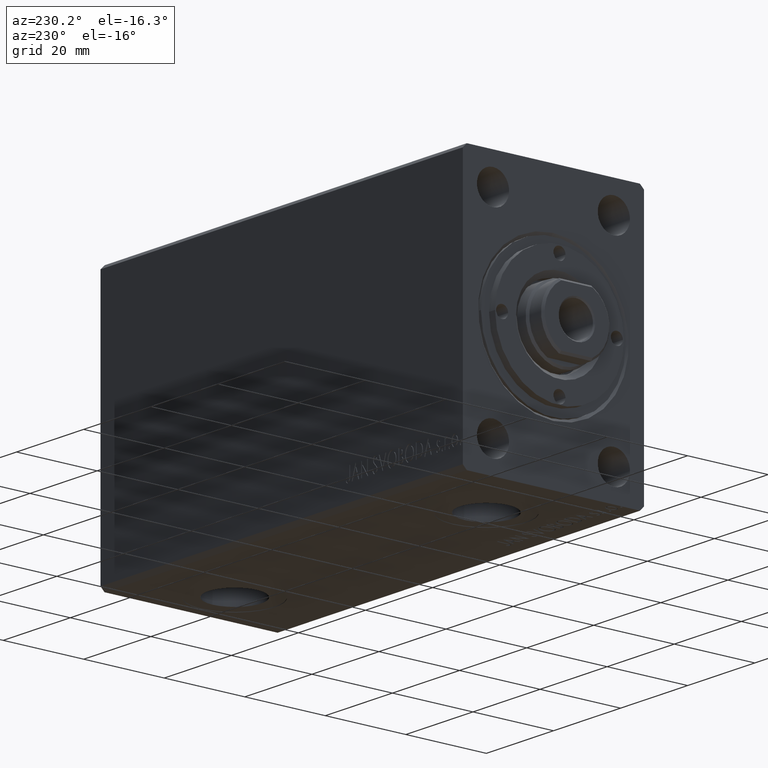
[diagram: clean part render]
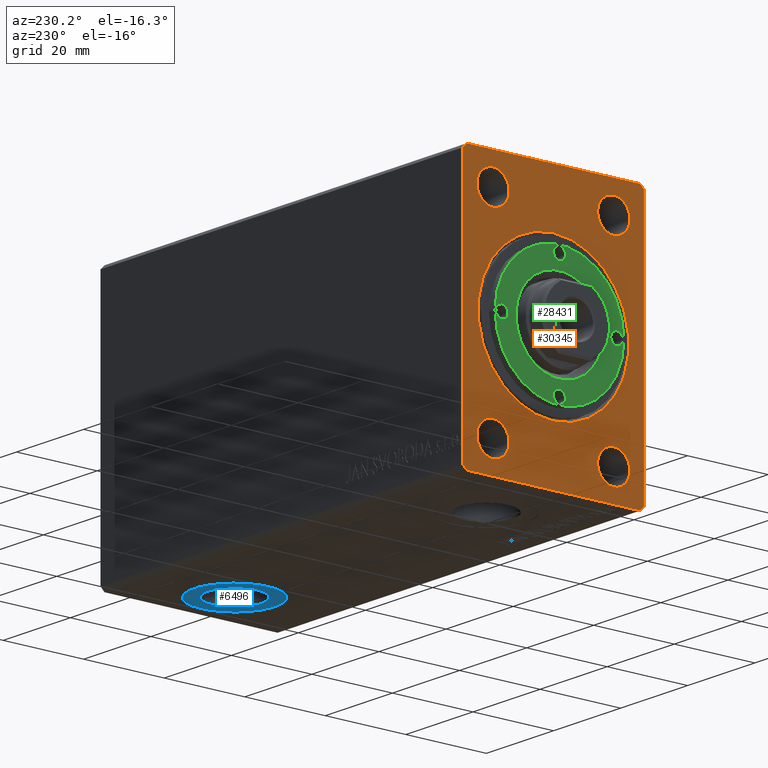
[diagram: same view with three faces highlighted in distinct colors, each labeled with its STEP entity id]
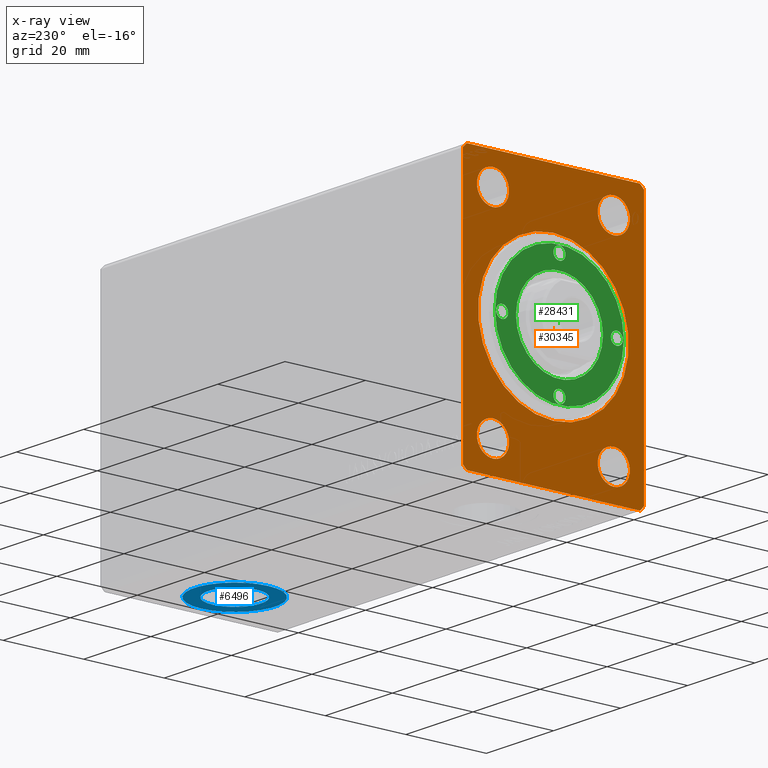
[diagram: x-ray of the same camera — body ghosted, the three highlighted faces saturated]
A machine part, auxiliary view with three faces highlighted in distinct colors.
The next image is the same camera in x-ray (body ghosted, the three faces saturated) — at least one of them is partly hidden behind the body in this view.
Their STEP definitions:

[orange] entity #30345 — the highlighted planar face has unit normal (1, 0, 0).
#123 = EDGE_CURVE ( 'NONE', #32239, #36268, #41563, .T. ) ;
#480 = EDGE_CURVE ( 'NONE', #14822, #27183, #4863, .T. ) ;
#1444 = CARTESIAN_POINT ( 'NONE',  ( 0.000000000000000000, -22.50000000000001421, -31.50000000000000711 ) ) ;
#2063 = EDGE_LOOP ( 'NONE', ( #32986, #43096 ) ) ;
#2504 = CARTESIAN_POINT ( 'NONE',  ( 0.000000000000000000, -21.50000000000001776, -32.50000000000000711 ) ) ;
#2526 = LINE ( 'NONE', #2757, #36854 ) ;
#2740 = CARTESIAN_POINT ( 'NONE',  ( -1.084202172485504434E-16, 2.290089514405546166E-15, -18.69999999999996732 ) ) ;
#2751 = ORIENTED_EDGE ( 'NONE', *, *, #18236, .T. ) ;
#2757 = CARTESIAN_POINT ( 'NONE',  ( 0.000000000000000000, 21.49999999999999645, -32.50000000000000000 ) ) ;
#3531 = EDGE_LOOP ( 'NONE', ( #23846, #42649, #38770, #3987, #16010, #43896, #6616, #28258 ) ) ;
#3573 = DIRECTION ( 'NONE',  ( 0.000000000000000000, -0.7071067811865474617, 0.7071067811865474617 ) ) ;
#3987 = ORIENTED_EDGE ( 'NONE', *, *, #42381, .F. ) ;
#4098 = CIRCLE ( 'NONE', #29004, 18.69999999999996732 ) ;
#4336 = EDGE_CURVE ( 'NONE', #38927, #24207, #39125, .T. ) ;
#4452 = LINE ( 'NONE', #28077, #20763 ) ;
#4766 = ORIENTED_EDGE ( 'NONE', *, *, #6497, .F. ) ;
#4842 = CARTESIAN_POINT ( 'NONE',  ( 3.061616997868395467E-16, 15.00000000000000355, 25.00000000000000000 ) ) ;
#4863 = CIRCLE ( 'NONE', #41181, 4.000000000000000000 ) ;
#5115 = CARTESIAN_POINT ( 'NONE',  ( 3.061616997868395467E-16, -14.99999999999999645, -24.99999999999999645 ) ) ;
#5208 = AXIS2_PLACEMENT_3D ( 'NONE', #8003, #25560, #22022 ) ;
#5232 = VERTEX_POINT ( 'NONE', #43721 ) ;
#5574 = EDGE_CURVE ( 'NONE', #18093, #26962, #18558, .T. ) ;
#6202 = DIRECTION ( 'NONE',  ( 0.000000000000000000, 0.000000000000000000, 1.000000000000000000 ) ) ;
#6497 = EDGE_CURVE ( 'NONE', #26962, #18093, #7872, .T. ) ;
#6564 = EDGE_LOOP ( 'NONE', ( #2751, #23253 ) ) ;
#6616 = ORIENTED_EDGE ( 'NONE', *, *, #39314, .F. ) ;
#7311 = VERTEX_POINT ( 'NONE', #34189 ) ;
#7331 = EDGE_LOOP ( 'NONE', ( #18684, #23206 ) ) ;
#7605 = DIRECTION ( 'NONE',  ( 0.000000000000000000, 0.000000000000000000, -1.000000000000000000 ) ) ;
#7872 = CIRCLE ( 'NONE', #24944, 4.000000000000000000 ) ;
#8003 = CARTESIAN_POINT ( 'NONE',  ( 3.061616997868395467E-16, -14.99999999999999645, 24.99999999999999645 ) ) ;
#8484 = CARTESIAN_POINT ( 'NONE',  ( 3.061616997868395467E-16, -14.99999999999999645, -20.99999999999999645 ) ) ;
#8691 = DIRECTION ( 'NONE',  ( 0.000000000000000000, 0.000000000000000000, 1.000000000000000000 ) ) ;
#8785 = CIRCLE ( 'NONE', #25851, 18.69999999999996732 ) ;
#8824 = CARTESIAN_POINT ( 'NONE',  ( 0.000000000000000000, 22.49999999999999645, 31.50000000000000000 ) ) ;
#10089 = DIRECTION ( 'NONE',  ( 1.000000000000000000, 0.000000000000000000, 0.000000000000000000 ) ) ;
#11058 = VERTEX_POINT ( 'NONE', #2504 ) ;
#11110 = LINE ( 'NONE', #28239, #29364 ) ;
#11363 = DIRECTION ( 'NONE',  ( 0.000000000000000000, 0.000000000000000000, -1.000000000000000000 ) ) ;
#11670 = VERTEX_POINT ( 'NONE', #8484 ) ;
#12203 = PLANE ( 'NONE',  #17065 ) ;
#12815 = DIRECTION ( 'NONE',  ( 0.000000000000000000, 5.507058653894625853E-17, -1.000000000000000000 ) ) ;
#13396 = DIRECTION ( 'NONE',  ( 0.000000000000000000, 0.000000000000000000, 1.000000000000000000 ) ) ;
#13618 = CARTESIAN_POINT ( 'NONE',  ( 3.061616997868395467E-16, -14.99999999999999645, 24.99999999999999645 ) ) ;
#13654 = CARTESIAN_POINT ( 'NONE',  ( 0.000000000000000000, 0.000000000000000000, 0.000000000000000000 ) ) ;
#13706 = EDGE_LOOP ( 'NONE', ( #29022, #4766 ) ) ;
#14822 = VERTEX_POINT ( 'NONE', #42579 ) ;
#14852 = CARTESIAN_POINT ( 'NONE',  ( 3.061616997868395467E-16, 15.00000000000000355, -24.99999999999999289 ) ) ;
#14896 = CARTESIAN_POINT ( 'NONE',  ( 3.061616997868395467E-16, -14.99999999999999645, 20.99999999999999645 ) ) ;
#14952 = CARTESIAN_POINT ( 'NONE',  ( 0.000000000000000000, -22.50000000000001421, -31.50000000000000711 ) ) ;
#15101 = DIRECTION ( 'NONE',  ( -1.000000000000000000, -0.000000000000000000, -0.000000000000000000 ) ) ;
#15175 = CARTESIAN_POINT ( 'NONE',  ( -1.084202172485504434E-16, 0.000000000000000000, 18.69999999999996732 ) ) ;
#15646 = AXIS2_PLACEMENT_3D ( 'NONE', #13618, #40363, #13396 ) ;
#16010 = ORIENTED_EDGE ( 'NONE', *, *, #37110, .F. ) ;
#16150 = DIRECTION ( 'NONE',  ( 0.000000000000000000, 0.7071067811865474617, 0.7071067811865474617 ) ) ;
#16188 = DIRECTION ( 'NONE',  ( 1.000000000000000000, 0.000000000000000000, 0.000000000000000000 ) ) ;
#16537 = VECTOR ( 'NONE', #41453, 1000.000000000000114 ) ;
#16876 = EDGE_CURVE ( 'NONE', #24207, #38927, #42220, .T. ) ;
#17065 = AXIS2_PLACEMENT_3D ( 'NONE', #35243, #38358, #7605 ) ;
#17252 = VERTEX_POINT ( 'NONE', #15175 ) ;
#17380 = CARTESIAN_POINT ( 'NONE',  ( 0.000000000000000000, 21.49999999999999645, 32.50000000000000000 ) ) ;
#17711 = CARTESIAN_POINT ( 'NONE',  ( 0.000000000000000000, -22.50000000000001776, 31.50000000000000000 ) ) ;
#17750 = EDGE_CURVE ( 'NONE', #27183, #14822, #40129, .T. ) ;
#18075 = DIRECTION ( 'NONE',  ( 0.000000000000000000, -0.7071067811865474617, -0.7071067811865474617 ) ) ;
#18093 = VERTEX_POINT ( 'NONE', #22576 ) ;
#18236 = EDGE_CURVE ( 'NONE', #17252, #22581, #8785, .T. ) ;
#18420 = DIRECTION ( 'NONE',  ( 0.000000000000000000, 0.000000000000000000, 1.000000000000000000 ) ) ;
#18491 = EDGE_CURVE ( 'NONE', #7311, #11670, #39385, .T. ) ;
#18558 = CIRCLE ( 'NONE', #42719, 4.000000000000000000 ) ;
#18684 = ORIENTED_EDGE ( 'NONE', *, *, #4336, .F. ) ;
#19873 = FACE_BOUND ( 'NONE', #43453, .T. ) ;
#20179 = AXIS2_PLACEMENT_3D ( 'NONE', #36737, #27123, #26904 ) ;
#20258 = ORIENTED_EDGE ( 'NONE', *, *, #17750, .F. ) ;
#20763 = VECTOR ( 'NONE', #18075, 1000.000000000000114 ) ;
#21209 = EDGE_CURVE ( 'NONE', #5232, #32239, #2526, .T. ) ;
#21437 = VECTOR ( 'NONE', #23382, 1000.000000000000000 ) ;
#21633 = VERTEX_POINT ( 'NONE', #14952 ) ;
#21690 = VERTEX_POINT ( 'NONE', #35451 ) ;
#21916 = EDGE_CURVE ( 'NONE', #22581, #17252, #4098, .T. ) ;
#22022 = DIRECTION ( 'NONE',  ( 0.000000000000000000, 0.000000000000000000, 1.000000000000000000 ) ) ;
#22062 = CARTESIAN_POINT ( 'NONE',  ( 3.061616997868395467E-16, 15.00000000000000355, 25.00000000000000000 ) ) ;
#22226 = CARTESIAN_POINT ( 'NONE',  ( 0.000000000000000000, 0.000000000000000000, 0.000000000000000000 ) ) ;
#22576 = CARTESIAN_POINT ( 'NONE',  ( 3.061616997868395467E-16, 15.00000000000000355, 29.00000000000000000 ) ) ;
#22581 = VERTEX_POINT ( 'NONE', #2740 ) ;
#22613 = LINE ( 'NONE', #26623, #41280 ) ;
#22923 = EDGE_CURVE ( 'NONE', #36268, #26224, #24309, .T. ) ;
#23206 = ORIENTED_EDGE ( 'NONE', *, *, #16876, .F. ) ;
#23253 = ORIENTED_EDGE ( 'NONE', *, *, #21916, .T. ) ;
#23382 = DIRECTION ( 'NONE',  ( 0.000000000000000000, -1.000000000000000000, 0.000000000000000000 ) ) ;
#23432 = CARTESIAN_POINT ( 'NONE',  ( 0.000000000000000000, 22.49999999999999645, 31.50000000000000000 ) ) ;
#23515 = CARTESIAN_POINT ( 'NONE',  ( 3.061616997868395467E-16, -14.99999999999999645, 28.99999999999999645 ) ) ;
#23846 = ORIENTED_EDGE ( 'NONE', *, *, #22923, .F. ) ;
#24207 = VERTEX_POINT ( 'NONE', #14896 ) ;
#24309 = LINE ( 'NONE', #23432, #34767 ) ;
#24391 = DIRECTION ( 'NONE',  ( 0.000000000000000000, 0.000000000000000000, 1.000000000000000000 ) ) ;
#24503 = LINE ( 'NONE', #1444, #16537 ) ;
#24605 = CARTESIAN_POINT ( 'NONE',  ( 0.000000000000000000, 22.49999999999999645, -31.50000000000000000 ) ) ;
#24944 = AXIS2_PLACEMENT_3D ( 'NONE', #22062, #25386, #35650 ) ;
#25134 = CARTESIAN_POINT ( 'NONE',  ( 0.000000000000000000, 21.49999999999999645, 32.50000000000000000 ) ) ;
#25386 = DIRECTION ( 'NONE',  ( -1.000000000000000000, -0.000000000000000000, -0.000000000000000000 ) ) ;
#25560 = DIRECTION ( 'NONE',  ( -1.000000000000000000, -0.000000000000000000, -0.000000000000000000 ) ) ;
#25851 = AXIS2_PLACEMENT_3D ( 'NONE', #13654, #10089, #11363 ) ;
#25952 = EDGE_CURVE ( 'NONE', #11670, #7311, #40450, .T. ) ;
#26199 = DIRECTION ( 'NONE',  ( 0.000000000000000000, 0.000000000000000000, -1.000000000000000000 ) ) ;
#26224 = VERTEX_POINT ( 'NONE', #25134 ) ;
#26557 = FACE_BOUND ( 'NONE', #13706, .T. ) ;
#26623 = CARTESIAN_POINT ( 'NONE',  ( 0.000000000000000000, -22.50000000000001776, 31.50000000000000000 ) ) ;
#26904 = DIRECTION ( 'NONE',  ( 0.000000000000000000, 0.000000000000000000, 1.000000000000000000 ) ) ;
#26962 = VERTEX_POINT ( 'NONE', #42077 ) ;
#27123 = DIRECTION ( 'NONE',  ( -1.000000000000000000, -0.000000000000000000, -0.000000000000000000 ) ) ;
#27183 = VERTEX_POINT ( 'NONE', #38649 ) ;
#28077 = CARTESIAN_POINT ( 'NONE',  ( 0.000000000000000000, -21.50000000000001421, 32.50000000000000000 ) ) ;
#28239 = CARTESIAN_POINT ( 'NONE',  ( 0.000000000000000000, -21.50000000000001776, -32.50000000000000711 ) ) ;
#28258 = ORIENTED_EDGE ( 'NONE', *, *, #33486, .F. ) ;
#29004 = AXIS2_PLACEMENT_3D ( 'NONE', #22226, #16188, #26199 ) ;
#29022 = ORIENTED_EDGE ( 'NONE', *, *, #5574, .F. ) ;
#29364 = VECTOR ( 'NONE', #41843, 1000.000000000000000 ) ;
#29671 = ORIENTED_EDGE ( 'NONE', *, *, #480, .F. ) ;
#30132 = FACE_BOUND ( 'NONE', #7331, .T. ) ;
#30137 = AXIS2_PLACEMENT_3D ( 'NONE', #14852, #35356, #18420 ) ;
#30345 = ADVANCED_FACE ( 'NONE', ( #26557, #36817, #19873, #30132, #33470, #41915 ), #12203, .F. ) ;
#30804 = EDGE_CURVE ( 'NONE', #34893, #21633, #22613, .T. ) ;
#32093 = DIRECTION ( 'NONE',  ( -1.000000000000000000, -0.000000000000000000, -0.000000000000000000 ) ) ;
#32239 = VERTEX_POINT ( 'NONE', #33489 ) ;
#32986 = ORIENTED_EDGE ( 'NONE', *, *, #25952, .F. ) ;
#33470 = FACE_BOUND ( 'NONE', #6564, .T. ) ;
#33486 = EDGE_CURVE ( 'NONE', #26224, #21690, #33863, .T. ) ;
#33489 = CARTESIAN_POINT ( 'NONE',  ( 0.000000000000000000, 22.49999999999999645, -31.50000000000000000 ) ) ;
#33863 = LINE ( 'NONE', #17380, #21437 ) ;
#34189 = CARTESIAN_POINT ( 'NONE',  ( 3.061616997868395467E-16, -14.99999999999999645, -28.99999999999999645 ) ) ;
#34767 = VECTOR ( 'NONE', #3573, 1000.000000000000114 ) ;
#34893 = VERTEX_POINT ( 'NONE', #17711 ) ;
#35243 = CARTESIAN_POINT ( 'NONE',  ( 0.000000000000000000, 0.000000000000000000, 0.000000000000000000 ) ) ;
#35356 = DIRECTION ( 'NONE',  ( -1.000000000000000000, -0.000000000000000000, -0.000000000000000000 ) ) ;
#35451 = CARTESIAN_POINT ( 'NONE',  ( 0.000000000000000000, -21.50000000000001421, 32.50000000000000000 ) ) ;
#35650 = DIRECTION ( 'NONE',  ( 0.000000000000000000, 0.000000000000000000, 1.000000000000000000 ) ) ;
#36268 = VERTEX_POINT ( 'NONE', #8824 ) ;
#36737 = CARTESIAN_POINT ( 'NONE',  ( 3.061616997868395467E-16, -14.99999999999999645, -24.99999999999999645 ) ) ;
#36817 = FACE_BOUND ( 'NONE', #2063, .T. ) ;
#36854 = VECTOR ( 'NONE', #16150, 1000.000000000000114 ) ;
#37110 = EDGE_CURVE ( 'NONE', #21633, #11058, #24503, .T. ) ;
#37623 = CARTESIAN_POINT ( 'NONE',  ( 3.061616997868395467E-16, 15.00000000000000355, -24.99999999999999289 ) ) ;
#38358 = DIRECTION ( 'NONE',  ( 1.000000000000000000, 0.000000000000000000, 0.000000000000000000 ) ) ;
#38649 = CARTESIAN_POINT ( 'NONE',  ( 3.061616997868395467E-16, 15.00000000000000355, -20.99999999999999289 ) ) ;
#38770 = ORIENTED_EDGE ( 'NONE', *, *, #21209, .F. ) ;
#38927 = VERTEX_POINT ( 'NONE', #23515 ) ;
#39125 = CIRCLE ( 'NONE', #15646, 4.000000000000000000 ) ;
#39314 = EDGE_CURVE ( 'NONE', #21690, #34893, #4452, .T. ) ;
#39385 = CIRCLE ( 'NONE', #20179, 4.000000000000000000 ) ;
#40129 = CIRCLE ( 'NONE', #30137, 4.000000000000000000 ) ;
#40363 = DIRECTION ( 'NONE',  ( -1.000000000000000000, -0.000000000000000000, -0.000000000000000000 ) ) ;
#40450 = CIRCLE ( 'NONE', #43268, 4.000000000000000000 ) ;
#41181 = AXIS2_PLACEMENT_3D ( 'NONE', #37623, #43650, #6202 ) ;
#41280 = VECTOR ( 'NONE', #12815, 1000.000000000000000 ) ;
#41453 = DIRECTION ( 'NONE',  ( 0.000000000000000000, 0.7071067811865451302, -0.7071067811865500152 ) ) ;
#41563 = LINE ( 'NONE', #24605, #44041 ) ;
#41843 = DIRECTION ( 'NONE',  ( 0.000000000000000000, 1.000000000000000000, 1.613696256722610912E-16 ) ) ;
#41915 = FACE_OUTER_BOUND ( 'NONE', #3531, .T. ) ;
#42068 = DIRECTION ( 'NONE',  ( 0.000000000000000000, 0.000000000000000000, 1.000000000000000000 ) ) ;
#42077 = CARTESIAN_POINT ( 'NONE',  ( 3.061616997868395467E-16, 15.00000000000000355, 21.00000000000000000 ) ) ;
#42220 = CIRCLE ( 'NONE', #5208, 4.000000000000000000 ) ;
#42381 = EDGE_CURVE ( 'NONE', #11058, #5232, #11110, .T. ) ;
#42579 = CARTESIAN_POINT ( 'NONE',  ( 3.061616997868395467E-16, 15.00000000000000355, -28.99999999999999289 ) ) ;
#42649 = ORIENTED_EDGE ( 'NONE', *, *, #123, .F. ) ;
#42719 = AXIS2_PLACEMENT_3D ( 'NONE', #4842, #15101, #42068 ) ;
#43096 = ORIENTED_EDGE ( 'NONE', *, *, #18491, .F. ) ;
#43268 = AXIS2_PLACEMENT_3D ( 'NONE', #5115, #32093, #8691 ) ;
#43453 = EDGE_LOOP ( 'NONE', ( #20258, #29671 ) ) ;
#43650 = DIRECTION ( 'NONE',  ( -1.000000000000000000, -0.000000000000000000, -0.000000000000000000 ) ) ;
#43721 = CARTESIAN_POINT ( 'NONE',  ( 0.000000000000000000, 21.49999999999999645, -32.50000000000000000 ) ) ;
#43896 = ORIENTED_EDGE ( 'NONE', *, *, #30804, .F. ) ;
#44041 = VECTOR ( 'NONE', #24391, 1000.000000000000000 ) ;

[blue] entity #6496 — the highlighted planar face has unit normal (0, 0, -1).
#210 = DIRECTION ( 'NONE',  ( -1.000000000000000000, 0.000000000000000000, 0.000000000000000000 ) ) ;
#682 = DIRECTION ( 'NONE',  ( -1.000000000000000000, 0.000000000000000000, 0.000000000000000000 ) ) ;
#797 = CIRCLE ( 'NONE', #30738, 6.580000000000002736 ) ;
#918 = CARTESIAN_POINT ( 'NONE',  ( 95.00000000000000000, -5.163828021512356497E-15, -32.39999999999999858 ) ) ;
#2206 = DIRECTION ( 'NONE',  ( -1.000000000000000000, 0.000000000000000000, 0.000000000000000000 ) ) ;
#2919 = CIRCLE ( 'NONE', #19316, 9.999999999999994671 ) ;
#3568 = CARTESIAN_POINT ( 'NONE',  ( 95.00000000000000000, -5.163828021512356497E-15, -32.39999999999999858 ) ) ;
#3582 = AXIS2_PLACEMENT_3D ( 'NONE', #3568, #30783, #210 ) ;
#3673 = CARTESIAN_POINT ( 'NONE',  ( 101.5799999999999983, -4.358010427673397455E-15, -32.39999999999999858 ) ) ;
#5025 = VERTEX_POINT ( 'NONE', #3673 ) ;
#5228 = EDGE_CURVE ( 'NONE', #24559, #36358, #24243, .T. ) ;
#6006 = FACE_OUTER_BOUND ( 'NONE', #32771, .T. ) ;
#6496 = ADVANCED_FACE ( 'NONE', ( #12697, #6006 ), #38989, .T. ) ;
#7997 = DIRECTION ( 'NONE',  ( 0.000000000000000000, 0.000000000000000000, -1.000000000000000000 ) ) ;
#8465 = DIRECTION ( 'NONE',  ( -1.000000000000000000, 0.000000000000000000, -0.000000000000000000 ) ) ;
#9001 = ORIENTED_EDGE ( 'NONE', *, *, #5228, .T. ) ;
#10090 = EDGE_CURVE ( 'NONE', #5025, #23011, #14362, .T. ) ;
#10339 = CARTESIAN_POINT ( 'NONE',  ( 105.0000000000000000, -3.939181222365004227E-15, -32.39999999999999858 ) ) ;
#12697 = FACE_BOUND ( 'NONE', #28777, .T. ) ;
#13018 = EDGE_CURVE ( 'NONE', #23011, #5025, #797, .T. ) ;
#14362 = CIRCLE ( 'NONE', #40035, 6.580000000000002736 ) ;
#15366 = DIRECTION ( 'NONE',  ( 0.000000000000000000, 0.000000000000000000, -1.000000000000000000 ) ) ;
#15385 = DIRECTION ( 'NONE',  ( 0.000000000000000000, 0.000000000000000000, -1.000000000000000000 ) ) ;
#16970 = CARTESIAN_POINT ( 'NONE',  ( 88.42000000000000171, -5.163828021512356497E-15, -32.39999999999999858 ) ) ;
#18932 = CARTESIAN_POINT ( 'NONE',  ( 95.00000000000000000, -5.163828021512356497E-15, -32.39999999999999858 ) ) ;
#19316 = AXIS2_PLACEMENT_3D ( 'NONE', #31623, #7997, #32266 ) ;
#21066 = ORIENTED_EDGE ( 'NONE', *, *, #10090, .F. ) ;
#21684 = DIRECTION ( 'NONE',  ( 0.000000000000000000, 0.000000000000000000, -1.000000000000000000 ) ) ;
#23011 = VERTEX_POINT ( 'NONE', #16970 ) ;
#23501 = CARTESIAN_POINT ( 'NONE',  ( 85.00000000000000000, -5.163828021512356497E-15, -32.39999999999999858 ) ) ;
#24243 = CIRCLE ( 'NONE', #3582, 9.999999999999994671 ) ;
#24559 = VERTEX_POINT ( 'NONE', #10339 ) ;
#28777 = EDGE_LOOP ( 'NONE', ( #30051, #21066 ) ) ;
#30051 = ORIENTED_EDGE ( 'NONE', *, *, #13018, .F. ) ;
#30738 = AXIS2_PLACEMENT_3D ( 'NONE', #42797, #15385, #2206 ) ;
#30783 = DIRECTION ( 'NONE',  ( 0.000000000000000000, 0.000000000000000000, -1.000000000000000000 ) ) ;
#31623 = CARTESIAN_POINT ( 'NONE',  ( 95.00000000000000000, -5.163828021512356497E-15, -32.39999999999999858 ) ) ;
#32266 = DIRECTION ( 'NONE',  ( -1.000000000000000000, 0.000000000000000000, 0.000000000000000000 ) ) ;
#32771 = EDGE_LOOP ( 'NONE', ( #39509, #9001 ) ) ;
#33737 = EDGE_CURVE ( 'NONE', #36358, #24559, #2919, .T. ) ;
#36358 = VERTEX_POINT ( 'NONE', #23501 ) ;
#37042 = AXIS2_PLACEMENT_3D ( 'NONE', #18932, #15366, #8465 ) ;
#38989 = PLANE ( 'NONE',  #37042 ) ;
#39509 = ORIENTED_EDGE ( 'NONE', *, *, #33737, .T. ) ;
#40035 = AXIS2_PLACEMENT_3D ( 'NONE', #918, #21684, #682 ) ;
#42797 = CARTESIAN_POINT ( 'NONE',  ( 95.00000000000000000, -5.163828021512356497E-15, -32.39999999999999858 ) ) ;

[green] entity #28431 — the highlighted planar face has unit normal (-1, 0, 0).
#60 = CIRCLE ( 'NONE', #2198, 16.00000000000000000 ) ;
#66 = DIRECTION ( 'NONE',  ( -0.000000000000000000, -0.000000000000000000, 1.000000000000000000 ) ) ;
#363 = ORIENTED_EDGE ( 'NONE', *, *, #22252, .F. ) ;
#1570 = CIRCLE ( 'NONE', #20827, 1.499999999999996891 ) ;
#1688 = CARTESIAN_POINT ( 'NONE',  ( 16.00000000000000000, 1.959434878635765131E-15, 6.999999999999999112 ) ) ;
#1965 = AXIS2_PLACEMENT_3D ( 'NONE', #20206, #9290, #16647 ) ;
#2198 = AXIS2_PLACEMENT_3D ( 'NONE', #34920, #18409, #17538 ) ;
#2672 = CARTESIAN_POINT ( 'NONE',  ( 0.000000000000000000, 14.25000000000000000, 6.999999999999999112 ) ) ;
#3939 = FACE_BOUND ( 'NONE', #35353, .T. ) ;
#4265 = DIRECTION ( 'NONE',  ( -0.000000000000000000, -0.000000000000000000, 1.000000000000000000 ) ) ;
#4357 = CIRCLE ( 'NONE', #15122, 1.499999999999996225 ) ;
#4776 = EDGE_CURVE ( 'NONE', #24440, #36619, #9265, .T. ) ;
#4856 = VERTEX_POINT ( 'NONE', #1688 ) ;
#5654 = VERTEX_POINT ( 'NONE', #21285 ) ;
#5807 = CARTESIAN_POINT ( 'NONE',  ( 0.000000000000000000, -14.25000000000000000, 6.999999999999999112 ) ) ;
#6186 = CARTESIAN_POINT ( 'NONE',  ( 15.74999999999999645, 0.000000000000000000, 6.999999999999999112 ) ) ;
#6492 = CARTESIAN_POINT ( 'NONE',  ( 14.25000000000000000, 0.000000000000000000, 6.999999999999999112 ) ) ;
#7211 = ORIENTED_EDGE ( 'NONE', *, *, #44154, .T. ) ;
#7298 = FACE_BOUND ( 'NONE', #26070, .T. ) ;
#7462 = DIRECTION ( 'NONE',  ( 1.000000000000000000, 0.000000000000000000, 0.000000000000000000 ) ) ;
#8605 = CARTESIAN_POINT ( 'NONE',  ( -12.75000000000000355, 0.000000000000000000, 6.999999999999999112 ) ) ;
#8625 = AXIS2_PLACEMENT_3D ( 'NONE', #5807, #39687, #18964 ) ;
#8658 = DIRECTION ( 'NONE',  ( 1.000000000000000000, 0.000000000000000000, 0.000000000000000000 ) ) ;
#9235 = EDGE_LOOP ( 'NONE', ( #12684, #11781 ) ) ;
#9265 = CIRCLE ( 'NONE', #19923, 10.79999999999997584 ) ;
#9290 = DIRECTION ( 'NONE',  ( -0.000000000000000000, -0.000000000000000000, 1.000000000000000000 ) ) ;
#10716 = AXIS2_PLACEMENT_3D ( 'NONE', #15647, #42838, #12325 ) ;
#11142 = VERTEX_POINT ( 'NONE', #20144 ) ;
#11781 = ORIENTED_EDGE ( 'NONE', *, *, #13220, .F. ) ;
#12325 = DIRECTION ( 'NONE',  ( 1.000000000000000000, 0.000000000000000000, 0.000000000000000000 ) ) ;
#12684 = ORIENTED_EDGE ( 'NONE', *, *, #37809, .F. ) ;
#12686 = DIRECTION ( 'NONE',  ( -0.000000000000000000, -0.000000000000000000, -1.000000000000000000 ) ) ;
#12985 = DIRECTION ( 'NONE',  ( -0.000000000000000000, -0.000000000000000000, 1.000000000000000000 ) ) ;
#13171 = EDGE_LOOP ( 'NONE', ( #21600, #7211 ) ) ;
#13220 = EDGE_CURVE ( 'NONE', #31118, #42787, #35021, .T. ) ;
#14058 = CARTESIAN_POINT ( 'NONE',  ( 1.499999999999996891, -14.25000000000000000, 6.999999999999999112 ) ) ;
#14774 = EDGE_CURVE ( 'NONE', #24755, #38859, #19381, .T. ) ;
#15122 = AXIS2_PLACEMENT_3D ( 'NONE', #34389, #30370, #43964 ) ;
#15587 = AXIS2_PLACEMENT_3D ( 'NONE', #32284, #18906, #8658 ) ;
#15647 = CARTESIAN_POINT ( 'NONE',  ( 0.000000000000000000, 0.000000000000000000, 6.999999999999999112 ) ) ;
#15854 = DIRECTION ( 'NONE',  ( 1.000000000000000000, 0.000000000000000000, 0.000000000000000000 ) ) ;
#16647 = DIRECTION ( 'NONE',  ( 1.000000000000000000, 0.000000000000000000, 0.000000000000000000 ) ) ;
#17347 = PLANE ( 'NONE',  #29102 ) ;
#17538 = DIRECTION ( 'NONE',  ( 1.000000000000000000, 0.000000000000000000, 0.000000000000000000 ) ) ;
#17559 = FACE_BOUND ( 'NONE', #27446, .T. ) ;
#17681 = CIRCLE ( 'NONE', #1965, 1.499999999999996225 ) ;
#17820 = ORIENTED_EDGE ( 'NONE', *, *, #37668, .F. ) ;
#18072 = CIRCLE ( 'NONE', #18753, 10.79999999999997584 ) ;
#18409 = DIRECTION ( 'NONE',  ( 0.000000000000000000, 0.000000000000000000, 1.000000000000000000 ) ) ;
#18567 = ORIENTED_EDGE ( 'NONE', *, *, #31262, .T. ) ;
#18753 = AXIS2_PLACEMENT_3D ( 'NONE', #22874, #39809, #35816 ) ;
#18906 = DIRECTION ( 'NONE',  ( -0.000000000000000000, -0.000000000000000000, 1.000000000000000000 ) ) ;
#18964 = DIRECTION ( 'NONE',  ( 1.000000000000000000, 0.000000000000000000, 0.000000000000000000 ) ) ;
#19381 = CIRCLE ( 'NONE', #30039, 1.499999999999996225 ) ;
#19923 = AXIS2_PLACEMENT_3D ( 'NONE', #43424, #12686, #40100 ) ;
#20144 = CARTESIAN_POINT ( 'NONE',  ( 1.499999999999996891, 14.25000000000000000, 6.999999999999999112 ) ) ;
#20206 = CARTESIAN_POINT ( 'NONE',  ( -14.25000000000000000, 0.000000000000000000, 6.999999999999999112 ) ) ;
#20827 = AXIS2_PLACEMENT_3D ( 'NONE', #2672, #43923, #15854 ) ;
#20856 = EDGE_CURVE ( 'NONE', #22531, #27691, #28972, .T. ) ;
#21285 = CARTESIAN_POINT ( 'NONE',  ( -16.00000000000000000, 0.000000000000000000, 6.999999999999999112 ) ) ;
#21600 = ORIENTED_EDGE ( 'NONE', *, *, #4776, .T. ) ;
#22252 = EDGE_CURVE ( 'NONE', #38859, #24755, #17681, .T. ) ;
#22531 = VERTEX_POINT ( 'NONE', #36863 ) ;
#22874 = CARTESIAN_POINT ( 'NONE',  ( 0.000000000000000000, 0.000000000000000000, 6.999999999999999112 ) ) ;
#22911 = AXIS2_PLACEMENT_3D ( 'NONE', #41110, #66, #7462 ) ;
#23789 = CARTESIAN_POINT ( 'NONE',  ( 0.000000000000000000, 0.000000000000000000, 6.999999999999999112 ) ) ;
#24272 = ORIENTED_EDGE ( 'NONE', *, *, #20856, .F. ) ;
#24440 = VERTEX_POINT ( 'NONE', #30908 ) ;
#24450 = DIRECTION ( 'NONE',  ( 1.000000000000000000, 0.000000000000000000, -0.000000000000000000 ) ) ;
#24556 = CARTESIAN_POINT ( 'NONE',  ( -14.25000000000000000, 0.000000000000000000, 6.999999999999999112 ) ) ;
#24755 = VERTEX_POINT ( 'NONE', #34401 ) ;
#24949 = ORIENTED_EDGE ( 'NONE', *, *, #41937, .F. ) ;
#25625 = VERTEX_POINT ( 'NONE', #42181 ) ;
#26070 = EDGE_LOOP ( 'NONE', ( #24949, #40513 ) ) ;
#26506 = CIRCLE ( 'NONE', #8625, 1.499999999999996891 ) ;
#27244 = DIRECTION ( 'NONE',  ( 1.000000000000000000, 0.000000000000000000, 0.000000000000000000 ) ) ;
#27446 = EDGE_LOOP ( 'NONE', ( #17820, #24272 ) ) ;
#27691 = VERTEX_POINT ( 'NONE', #6186 ) ;
#28291 = EDGE_CURVE ( 'NONE', #25625, #11142, #41914, .T. ) ;
#28431 = ADVANCED_FACE ( 'NONE', ( #3939, #7298, #17559, #33831, #30923, #40954 ), #17347, .T. ) ;
#28972 = CIRCLE ( 'NONE', #40385, 1.499999999999996225 ) ;
#29102 = AXIS2_PLACEMENT_3D ( 'NONE', #23789, #31139, #24450 ) ;
#30039 = AXIS2_PLACEMENT_3D ( 'NONE', #24556, #4265, #27244 ) ;
#30370 = DIRECTION ( 'NONE',  ( -0.000000000000000000, -0.000000000000000000, 1.000000000000000000 ) ) ;
#30566 = DIRECTION ( 'NONE',  ( 1.000000000000000000, 0.000000000000000000, 0.000000000000000000 ) ) ;
#30908 = CARTESIAN_POINT ( 'NONE',  ( 10.79999999999997584, 0.000000000000000000, 6.999999999999999112 ) ) ;
#30923 = FACE_BOUND ( 'NONE', #13171, .T. ) ;
#31118 = VERTEX_POINT ( 'NONE', #41756 ) ;
#31139 = DIRECTION ( 'NONE',  ( 0.000000000000000000, 0.000000000000000000, 1.000000000000000000 ) ) ;
#31262 = EDGE_CURVE ( 'NONE', #4856, #5654, #31352, .T. ) ;
#31352 = CIRCLE ( 'NONE', #10716, 16.00000000000000000 ) ;
#32284 = CARTESIAN_POINT ( 'NONE',  ( 0.000000000000000000, 14.25000000000000000, 6.999999999999999112 ) ) ;
#33493 = CARTESIAN_POINT ( 'NONE',  ( -10.79999999999997584, 1.322618543079138535E-15, 6.999999999999999112 ) ) ;
#33831 = FACE_BOUND ( 'NONE', #9235, .T. ) ;
#33943 = EDGE_CURVE ( 'NONE', #5654, #4856, #60, .T. ) ;
#34389 = CARTESIAN_POINT ( 'NONE',  ( 14.25000000000000000, 0.000000000000000000, 6.999999999999999112 ) ) ;
#34401 = CARTESIAN_POINT ( 'NONE',  ( -15.74999999999999645, 1.836970198721025004E-16, 6.999999999999999112 ) ) ;
#34920 = CARTESIAN_POINT ( 'NONE',  ( 0.000000000000000000, 0.000000000000000000, 6.999999999999999112 ) ) ;
#35021 = CIRCLE ( 'NONE', #22911, 1.499999999999996891 ) ;
#35314 = ORIENTED_EDGE ( 'NONE', *, *, #33943, .T. ) ;
#35353 = EDGE_LOOP ( 'NONE', ( #363, #40348 ) ) ;
#35816 = DIRECTION ( 'NONE',  ( 1.000000000000000000, 0.000000000000000000, 0.000000000000000000 ) ) ;
#36619 = VERTEX_POINT ( 'NONE', #33493 ) ;
#36863 = CARTESIAN_POINT ( 'NONE',  ( 12.75000000000000355, 1.836970198721025004E-16, 6.999999999999999112 ) ) ;
#37668 = EDGE_CURVE ( 'NONE', #27691, #22531, #4357, .T. ) ;
#37809 = EDGE_CURVE ( 'NONE', #42787, #31118, #26506, .T. ) ;
#38859 = VERTEX_POINT ( 'NONE', #8605 ) ;
#39687 = DIRECTION ( 'NONE',  ( -0.000000000000000000, -0.000000000000000000, 1.000000000000000000 ) ) ;
#39809 = DIRECTION ( 'NONE',  ( -0.000000000000000000, -0.000000000000000000, -1.000000000000000000 ) ) ;
#40100 = DIRECTION ( 'NONE',  ( 1.000000000000000000, 0.000000000000000000, 0.000000000000000000 ) ) ;
#40348 = ORIENTED_EDGE ( 'NONE', *, *, #14774, .F. ) ;
#40385 = AXIS2_PLACEMENT_3D ( 'NONE', #6492, #12985, #30566 ) ;
#40513 = ORIENTED_EDGE ( 'NONE', *, *, #28291, .F. ) ;
#40954 = FACE_OUTER_BOUND ( 'NONE', #41941, .T. ) ;
#41110 = CARTESIAN_POINT ( 'NONE',  ( 0.000000000000000000, -14.25000000000000000, 6.999999999999999112 ) ) ;
#41756 = CARTESIAN_POINT ( 'NONE',  ( -1.499999999999996891, -14.25000000000000000, 6.999999999999999112 ) ) ;
#41914 = CIRCLE ( 'NONE', #15587, 1.499999999999996891 ) ;
#41937 = EDGE_CURVE ( 'NONE', #11142, #25625, #1570, .T. ) ;
#41941 = EDGE_LOOP ( 'NONE', ( #35314, #18567 ) ) ;
#42181 = CARTESIAN_POINT ( 'NONE',  ( -1.499999999999996891, 14.25000000000000000, 6.999999999999999112 ) ) ;
#42787 = VERTEX_POINT ( 'NONE', #14058 ) ;
#42838 = DIRECTION ( 'NONE',  ( 0.000000000000000000, 0.000000000000000000, 1.000000000000000000 ) ) ;
#43424 = CARTESIAN_POINT ( 'NONE',  ( 0.000000000000000000, 0.000000000000000000, 6.999999999999999112 ) ) ;
#43923 = DIRECTION ( 'NONE',  ( -0.000000000000000000, -0.000000000000000000, 1.000000000000000000 ) ) ;
#43964 = DIRECTION ( 'NONE',  ( 1.000000000000000000, 0.000000000000000000, 0.000000000000000000 ) ) ;
#44154 = EDGE_CURVE ( 'NONE', #36619, #24440, #18072, .T. ) ;